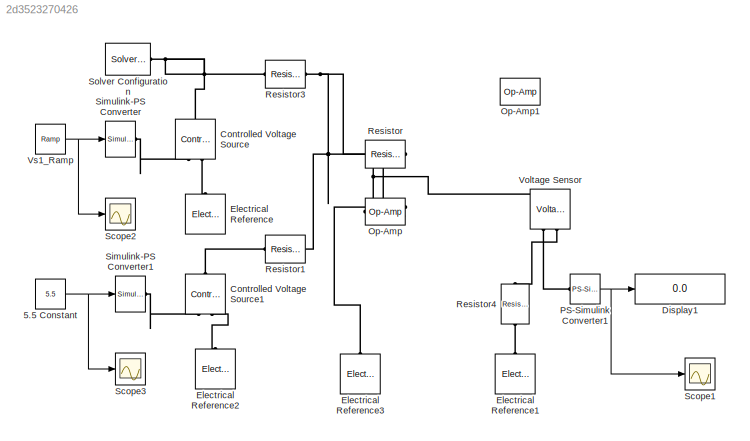
MODEL slx_2d3523270426
KIND model
BLOCK [Constant] 5.5 Constant
  Value = 5.5
BLOCK [Reference] Controlled Voltage Source  REF=fl_lib/Electrical/Electrical Sources/Controlled Voltage
Source
  ClassName = controlled_voltage
  ComponentPath = foundation.electrical.sources.controlled_voltage
  ComponentVariantNames = controlled_voltage
  ComponentVariants = foundation.electrical.sources.controlled_voltage
  LocalVarDescs = |i|v
  LocalVarLogging = [0 0]
  LocalVarNames = |i|v
  Ports = [0, 0, 0, 0, 0, 1, 2]
  SchemaVersion = 1
  SourceBlock = fl_lib/Electrical/Electrical Sources/Controlled Voltage\nSource
  SourceFile = foundation.electrical.sources.controlled_voltage
  SourceType = Controlled Voltage\nSource
  i_Log = off
  v_Log = off
BLOCK [Reference] Controlled Voltage Source1  REF=fl_lib/Electrical/Electrical Sources/Controlled Voltage
Source
  ClassName = controlled_voltage
  ComponentPath = foundation.electrical.sources.controlled_voltage
  ComponentVariantNames = controlled_voltage
  ComponentVariants = foundation.electrical.sources.controlled_voltage
  LocalVarDescs = |i|v
  LocalVarLogging = [0 0]
  LocalVarNames = |i|v
  Ports = [0, 0, 0, 0, 0, 1, 2]
  SchemaVersion = 1
  SourceBlock = fl_lib/Electrical/Electrical Sources/Controlled Voltage\nSource
  SourceFile = foundation.electrical.sources.controlled_voltage
  SourceType = Controlled Voltage\nSource
  i_Log = off
  v_Log = off
BLOCK [Display] Display1
  Decimation = 4
  Lockdown = off
  Ports = [1]
BLOCK [Reference] Electrical Reference  REF=fl_lib/Electrical/Electrical Elements/Electrical Reference
  ClassName = reference
  ComponentPath = foundation.electrical.elements.reference
  ComponentVariantNames = reference
  ComponentVariants = foundation.electrical.elements.reference
  LocalVarDescs = |i
  LocalVarLogging = 0
  LocalVarNames = |i
  Ports = [0, 0, 0, 0, 0, 1]
  SchemaVersion = 1
  SourceBlock = fl_lib/Electrical/Electrical Elements/Electrical Reference
  SourceFile = foundation.electrical.elements.reference
  SourceType = Electrical Reference
  i_Log = off
BLOCK [Reference] Electrical Reference1  REF=fl_lib/Electrical/Electrical Elements/Electrical Reference
  ClassName = reference
  ComponentPath = foundation.electrical.elements.reference
  ComponentVariantNames = reference
  ComponentVariants = foundation.electrical.elements.reference
  LocalVarDescs = |i
  LocalVarLogging = 0
  LocalVarNames = |i
  Ports = [0, 0, 0, 0, 0, 1]
  SchemaVersion = 1
  SourceBlock = fl_lib/Electrical/Electrical Elements/Electrical Reference
  SourceFile = foundation.electrical.elements.reference
  SourceType = Electrical Reference
  i_Log = off
BLOCK [Reference] Electrical Reference2  REF=fl_lib/Electrical/Electrical Elements/Electrical Reference
  ClassName = reference
  ComponentPath = foundation.electrical.elements.reference
  ComponentVariantNames = reference
  ComponentVariants = foundation.electrical.elements.reference
  LocalVarDescs = |i
  LocalVarLogging = 0
  LocalVarNames = |i
  Ports = [0, 0, 0, 0, 0, 1]
  SchemaVersion = 1
  SourceBlock = fl_lib/Electrical/Electrical Elements/Electrical Reference
  SourceFile = foundation.electrical.elements.reference
  SourceType = Electrical Reference
  i_Log = off
BLOCK [Reference] Electrical Reference3  REF=fl_lib/Electrical/Electrical Elements/Electrical Reference
  ClassName = reference
  ComponentPath = foundation.electrical.elements.reference
  ComponentVariantNames = reference
  ComponentVariants = foundation.electrical.elements.reference
  LocalVarDescs = |i
  LocalVarLogging = 0
  LocalVarNames = |i
  Ports = [0, 0, 0, 0, 0, 1]
  SchemaVersion = 1
  SourceBlock = fl_lib/Electrical/Electrical Elements/Electrical Reference
  SourceFile = foundation.electrical.elements.reference
  SourceType = Electrical Reference
  i_Log = off
BLOCK [Reference] Op-Amp  REF=fl_lib/Electrical/Electrical Elements/Op-Amp
  ClassName = op_amp
  ComponentPath = foundation.electrical.elements.op_amp
  ComponentVariantNames = op_amp
  ComponentVariants = foundation.electrical.elements.op_amp
  LocalVarDescs = |i1|v1|outI
  LocalVarLogging = [0 0 0]
  LocalVarNames = |i1|v1|outI
  Ports = [0, 0, 0, 0, 0, 2, 1]
  SchemaVersion = 1
  SourceBlock = fl_lib/Electrical/Electrical Elements/Op-Amp
  SourceFile = foundation.electrical.elements.op_amp
  SourceType = Op-Amp
  i1_Log = off
  outI_Log = off
  v1_Log = off
BLOCK [Reference] Op-Amp1  REF=fl_lib/Electrical/Electrical Elements/Op-Amp
  ClassName = op_amp
  ComponentPath = foundation.electrical.elements.op_amp
  ComponentVariantNames = op_amp
  ComponentVariants = foundation.electrical.elements.op_amp
  LocalVarDescs = |i1|v1|outI
  LocalVarLogging = [0 0 0]
  LocalVarNames = |i1|v1|outI
  Ports = [0, 0, 0, 0, 0, 2, 1]
  SchemaVersion = 1
  SourceBlock = fl_lib/Electrical/Electrical Elements/Op-Amp
  SourceFile = foundation.electrical.elements.op_amp
  SourceType = Op-Amp
  i1_Log = off
  outI_Log = off
  v1_Log = off
BLOCK [Reference] PS-Simulink Converter1  REF=nesl_utility/PS-Simulink
Converter
  AffineConversion = off
  Frequencies = []
  LeftPortType = input
  PhysicalDomain = network_engine_domain
  Ports = [0, 1, 0, 0, 0, 1]
  PseudoPeriodic = off
  RightPortType = output
  SourceBlock = nesl_utility/PS-Simulink\nConverter
  SourceType = PS-Simulink\nConverter
  SubClassName = ps_output
  Unit = 1
BLOCK [Reference] Resistor  REF=fl_lib/Electrical/Electrical Elements/Resistor
  ClassName = resistor
  ComponentPath = foundation.electrical.elements.resistor
  ComponentVariantNames = resistor
  ComponentVariants = foundation.electrical.elements.resistor
  LocalVarDescs = |i|v
  LocalVarLogging = [0 0]
  LocalVarNames = |i|v
  Ports = [0, 0, 0, 0, 0, 1, 1]
  R = 3000
  R_unit = Ohm
  SchemaVersion = 1
  SourceBlock = fl_lib/Electrical/Electrical Elements/Resistor
  SourceFile = foundation.electrical.elements.resistor
  SourceType = Resistor
  i_Log = off
  v_Log = off
BLOCK [Reference] Resistor1  REF=fl_lib/Electrical/Electrical Elements/Resistor
  ClassName = resistor
  ComponentPath = foundation.electrical.elements.resistor
  ComponentVariantNames = resistor
  ComponentVariants = foundation.electrical.elements.resistor
  LocalVarDescs = |i|v
  LocalVarLogging = [0 0]
  LocalVarNames = |i|v
  Ports = [0, 0, 0, 0, 0, 1, 1]
  R = 10000
  R_unit = Ohm
  SchemaVersion = 1
  SourceBlock = fl_lib/Electrical/Electrical Elements/Resistor
  SourceFile = foundation.electrical.elements.resistor
  SourceType = Resistor
  i_Log = off
  v_Log = off
BLOCK [Reference] Resistor3  REF=fl_lib/Electrical/Electrical Elements/Resistor
  ClassName = resistor
  ComponentPath = foundation.electrical.elements.resistor
  ComponentVariantNames = resistor
  ComponentVariants = foundation.electrical.elements.resistor
  LocalVarDescs = |i|v
  LocalVarLogging = [0 0]
  LocalVarNames = |i|v
  Ports = [0, 0, 0, 0, 0, 1, 1]
  R = 10000
  R_unit = Ohm
  SchemaVersion = 1
  SourceBlock = fl_lib/Electrical/Electrical Elements/Resistor
  SourceFile = foundation.electrical.elements.resistor
  SourceType = Resistor
  i_Log = off
  v_Log = off
BLOCK [Reference] Resistor4  REF=fl_lib/Electrical/Electrical Elements/Resistor
  ClassName = resistor
  ComponentPath = foundation.electrical.elements.resistor
  ComponentVariantNames = resistor
  ComponentVariants = foundation.electrical.elements.resistor
  LocalVarDescs = |i|v
  LocalVarLogging = [0 0]
  LocalVarNames = |i|v
  Ports = [0, 0, 0, 0, 0, 1, 1]
  R = 30000
  R_unit = Ohm
  SchemaVersion = 1
  SourceBlock = fl_lib/Electrical/Electrical Elements/Resistor
  SourceFile = foundation.electrical.elements.resistor
  SourceType = Resistor
  i_Log = off
  v_Log = off
BLOCK [Scope] Scope1
  DataFormat = StructureWithTime
  Floating = off
  NumInputPorts = 1
  Ports = [1]
  SampleTime = 0
  ShowLegends = off
  TimeRange = 0.1721355567509413
  YMax = -3.396424815983176
  YMin = -4.016824395373293
  ZoomMode = xonly
BLOCK [Scope] Scope2
  DataFormat = StructureWithTime
  Floating = off
  NumInputPorts = 1
  Ports = [1]
  SampleTime = 0
  SaveName = ScopeData1
  ShowLegends = off
BLOCK [Scope] Scope3
  DataFormat = StructureWithTime
  Floating = off
  NumInputPorts = 1
  Ports = [1]
  SampleTime = 0
  SaveName = ScopeData2
  ShowLegends = off
BLOCK [Reference] Simulink-PS Converter  REF=nesl_utility/Simulink-PS
Converter
  AffineConversion = off
  Frequencies = []
  InputFilterTimeConstant = 0.001
  InputFiltering = off
  LeftPortType = input
  NoiseDistribution = none
  NoiseParameters = []
  PhysicalDomain = network_engine_domain
  Ports = [1, 0, 0, 0, 0, 0, 1]
  PseudoPeriodic = off
  RightPortType = output
  SimscapeFilterOrder = 1
  SourceBlock = nesl_utility/Simulink-PS\nConverter
  SourceType = Simulink-PS\nConverter
  SubClassName = ps_input
  UdotUserProvided = 1
  Unit = 1
BLOCK [Reference] Simulink-PS Converter1  REF=nesl_utility/Simulink-PS
Converter
  AffineConversion = off
  Frequencies = []
  InputFilterTimeConstant = 0.001
  InputFiltering = off
  LeftPortType = input
  NoiseDistribution = none
  NoiseParameters = []
  PhysicalDomain = network_engine_domain
  Ports = [1, 0, 0, 0, 0, 0, 1]
  PseudoPeriodic = off
  RightPortType = output
  SimscapeFilterOrder = 1
  SourceBlock = nesl_utility/Simulink-PS\nConverter
  SourceType = Simulink-PS\nConverter
  SubClassName = ps_input
  UdotUserProvided = 1
  Unit = 1
BLOCK [Reference] Solver Configuration  REF=nesl_utility/Solver
Configuration
  Accelerate = off
  DelaysMemoryBudget = 1024
  DoDC = off
  DoFixedCost = off
  EnableSwitchedLinearOptims = on
  FrequencyDomain = off
  Harmonics = []
  LeftPortType = input
  LinearAlgebra = Sparse
  LocalSolverChoice = NE_BACKWARD_EULER_ADVANCER
  LocalSolverSampleTime = 0.001
  MaxModeIter = 2
  MaxNonlinIter = 3
  PhysicalDomain = network_engine_domain
  Ports = [0, 0, 0, 0, 0, 0, 1]
  Profile = off
  ResidualTolerance = 1e-09
  RightPortType = generic
  SimulateNoise = off
  SourceBlock = nesl_utility/Solver\nConfiguration
  SourceType = Solver\nConfiguration
  SubClassName = solver
  Tones = []
  UseCCode = off
  UseLocalSampling = off
  UseLocalSolver = off
  UseNewInitialization = off
BLOCK [Reference] Voltage Sensor  REF=fl_lib/Electrical/Electrical Sensors/Voltage Sensor
  ClassName = voltage
  ComponentPath = foundation.electrical.sensors.voltage
  ComponentVariantNames = voltage
  ComponentVariants = foundation.electrical.sensors.voltage
  LocalVarDescs = |i1|v1
  LocalVarLogging = [0 0]
  LocalVarNames = |i1|v1
  Ports = [0, 0, 0, 0, 0, 1, 2]
  SchemaVersion = 1
  SourceBlock = fl_lib/Electrical/Electrical Sensors/Voltage Sensor
  SourceFile = foundation.electrical.sensors.voltage
  SourceType = Voltage Sensor
  i1_Log = off
  v1_Log = off
BLOCK [Reference] Vs1_Ramp  REF=simulink/Sources/Ramp
  Ports = [0, 1]
  SourceBlock = simulink/Sources/Ramp
  SourceType = Ramp
  VectorParams1D = on
  X0 = -5.5
  slope = 1
  start = 0
NET 5.5 Constant:1 -> Scope3:1, Simulink-PS Converter1:1
NET PS-Simulink Converter1:1 -> Display1:1, Scope1:1
NET Vs1_Ramp:1 -> Scope2:1, Simulink-PS Converter:1
PLINE Controlled Voltage Source1:LConn1 -- Resistor1:LConn1
PLINE Controlled Voltage Source1:RConn1 -- Simulink-PS Converter1:RConn1
PLINE Controlled Voltage Source1:RConn2 -- Electrical Reference2:LConn1
PNET net1: Controlled Voltage Source:LConn1 -- Resistor3:LConn1 -- Solver Configuration:RConn1
PLINE Controlled Voltage Source:RConn1 -- Simulink-PS Converter:RConn1
PLINE Controlled Voltage Source:RConn2 -- Electrical Reference:LConn1
PLINE Electrical Reference1:LConn1 -- Resistor4:RConn1
PLINE Electrical Reference3:LConn1 -- Op-Amp:LConn1
PNET net2: Op-Amp:LConn2 -- Resistor1:RConn1 -- Resistor3:RConn1 -- Resistor:LConn1
PNET net3: Op-Amp:RConn1 -- Resistor:RConn1 -- Voltage Sensor:LConn1
PLINE PS-Simulink Converter1:LConn1 -- Voltage Sensor:RConn1
PLINE Resistor4:LConn1 -- Voltage Sensor:RConn2
note: NET lines group one-source signal fan-out (src -> all destinations, sorted); 1:1 wires keep LINE; PNET lines group multi-terminal physical nets as a canonical sorted terminal list (undirected conserving connections); 2-terminal nets keep the pairwise PLINE form
